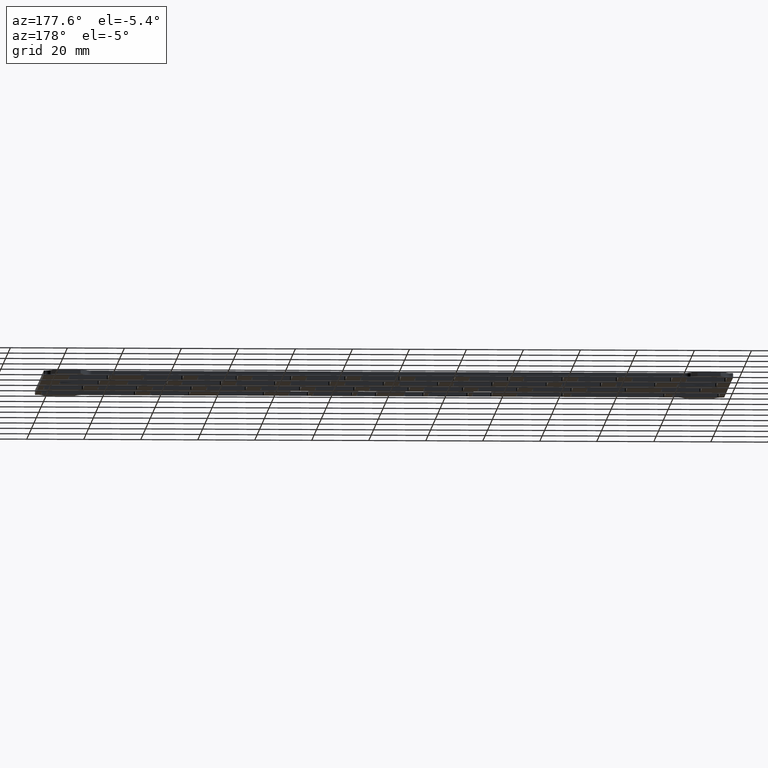
[diagram: clean part render]
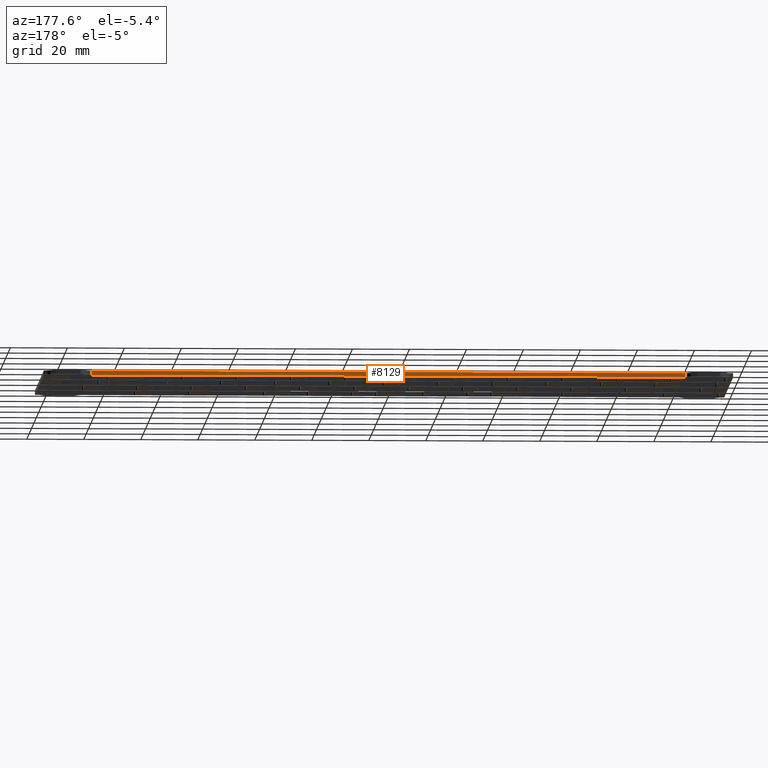
[diagram: same view with one face highlighted and labeled with its STEP entity id]
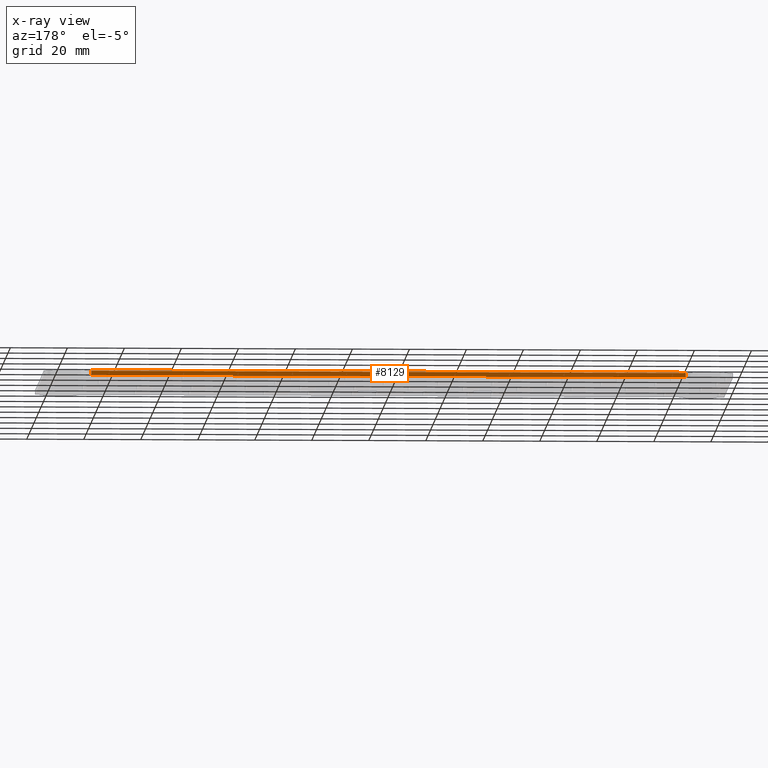
[diagram: x-ray of the same camera — body ghosted, the highlighted face saturated]
A machine part, auxiliary view. The second image highlights one B-rep face of the part: STEP entity #8129.
The next image is the same camera in x-ray: the body ghosted, the highlighted face saturated — about 0% of this face is hidden behind the body in this view.
In plain terms, the highlighted planar face has unit normal (0, -1, 0).
Its self-contained STEP definition (entity closure, byte-faithful):
#727=FACE_OUTER_BOUND('',#1145,.T.);
#1145=EDGE_LOOP('',(#5431,#5432,#5433,#5434));
#1665=LINE('',#11904,#2505);
#1666=LINE('',#11907,#2506);
#1667=LINE('',#11909,#2507);
#1668=LINE('',#11910,#2508);
#2505=VECTOR('',#9407,10.);
#2506=VECTOR('',#9410,10.);
#2507=VECTOR('',#9411,10.);
#2508=VECTOR('',#9412,10.);
#3343=VERTEX_POINT('',#11900);
#3344=VERTEX_POINT('',#11902);
#3345=VERTEX_POINT('',#11906);
#3346=VERTEX_POINT('',#11908);
#4179=EDGE_CURVE('',#3344,#3343,#1665,.T.);
#4180=EDGE_CURVE('',#3343,#3345,#1666,.T.);
#4181=EDGE_CURVE('',#3346,#3344,#1667,.T.);
#4182=EDGE_CURVE('',#3346,#3345,#1668,.T.);
#5431=ORIENTED_EDGE('',*,*,#4180,.F.);
#5432=ORIENTED_EDGE('',*,*,#4179,.F.);
#5433=ORIENTED_EDGE('',*,*,#4181,.F.);
#5434=ORIENTED_EDGE('',*,*,#4182,.T.);
#7914=PLANE('',#8563);
#8129=ADVANCED_FACE('',(#727),#7914,.F.);
#8563=AXIS2_PLACEMENT_3D('',#11905,#9408,#9409);
#9407=DIRECTION('',(0.,0.,-1.));
#9408=DIRECTION('center_axis',(1.26528094285306E-17,-1.,0.));
#9409=DIRECTION('ref_axis',(-1.,-1.26528094285306E-17,0.));
#9410=DIRECTION('',(1.,1.26528094285306E-17,0.));
#9411=DIRECTION('',(-1.,-1.26528094285306E-17,0.));
#9412=DIRECTION('',(0.,0.,-1.));
#11900=CARTESIAN_POINT('',(17.2463502691896,-0.525,0.));
#11902=CARTESIAN_POINT('',(17.2463502691896,-0.525,1.5));
#11904=CARTESIAN_POINT('',(17.2463502691896,-0.525,1.5));
#11905=CARTESIAN_POINT('Origin',(225.64114973081,-0.524999999999997,1.5));
#11906=CARTESIAN_POINT('',(225.64114973081,-0.524999999999997,0.));
#11907=CARTESIAN_POINT('',(173.542449865405,-0.524999999999998,0.));
#11908=CARTESIAN_POINT('',(225.64114973081,-0.524999999999997,1.5));
#11909=CARTESIAN_POINT('',(173.542449865405,-0.524999999999998,1.5));
#11910=CARTESIAN_POINT('',(225.64114973081,-0.524999999999997,1.5));